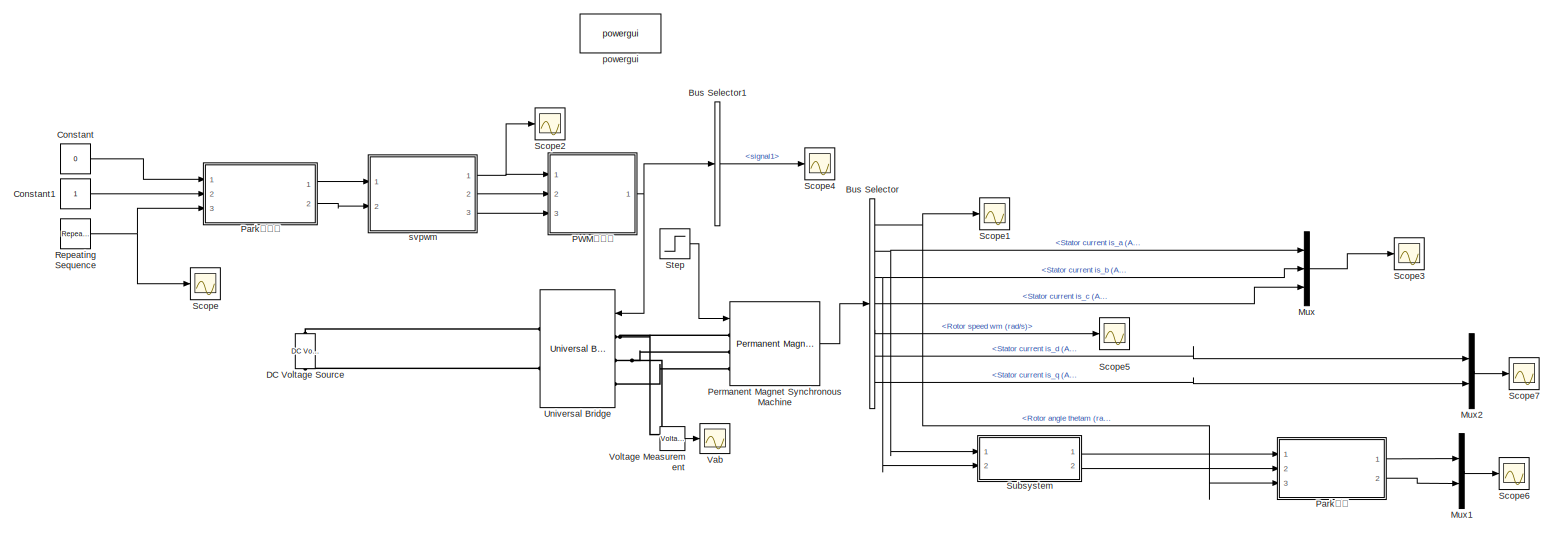
[diagram: root canvas - part 1/1, most of the canvas]
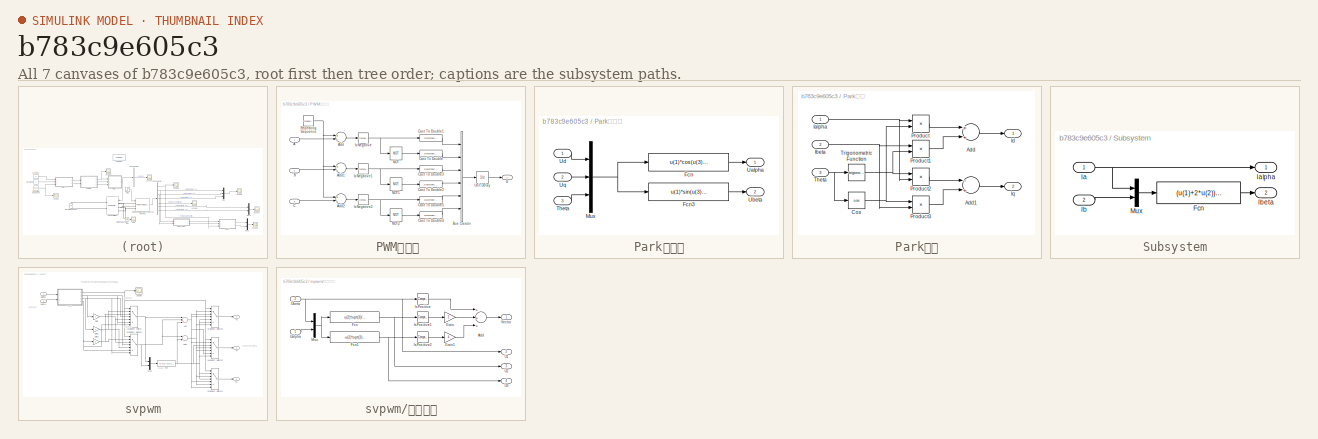
[diagram: thumbnail index - all 7 canvases of the model, root first then tree order]
MODEL slx_b783c9e605c3
KIND model
CONFIG AbsTol = auto
CONFIG EnableMultiTasking = off
CONFIG FixedStep = auto
CONFIG MaxStep = auto
CONFIG MinStep = auto
CONFIG RelTol = 1e-3
CONFIG SampleTimeConstraint = Unconstrained
CONFIG Solver = VariableStepAuto
CONFIG SolverName = VariableStepAuto
CONFIG StartTime = 0.0
CONFIG StopTime = 10.0
BLOCK [BusSelector] Bus Selector
  OutputAsBus = off
  OutputSignals = Rotor angle thetam (rad),Stator current is_a (A),Stator current is_b (A),Stator current is_c (A),Rotor speed wm (rad/s),Stator current is_d (A),Stator current is_q (A)
  Ports = [1, 7]
BLOCK [BusSelector] Bus Selector1
  OutputAsBus = off
  OutputSignals = signal1
  Ports = [1, 1]
BLOCK [Constant] Constant
  Value = 0
BLOCK [Constant] Constant1
BLOCK [Reference] DC Voltage Source  REF=powerlib/Electrical
Sources/DC Voltage Source
  Ports = [0, 0, 0, 0, 0, 1, 1]
  SourceBlock = powerlib/Electrical\nSources/DC Voltage Source
  SourceProductBaseCode = PS
  SourceProductName = Simscape Power Systems
  SourceType = DC Voltage Source
BLOCK [Mux] Mux
  DisplayOption = bar
  Inputs = 3
  Ports = [3, 1]
BLOCK [Mux] Mux1
  DisplayOption = bar
  Inputs = 2
  Ports = [2, 1]
BLOCK [Mux] Mux2
  DisplayOption = bar
  Inputs = 2
  Ports = [2, 1]
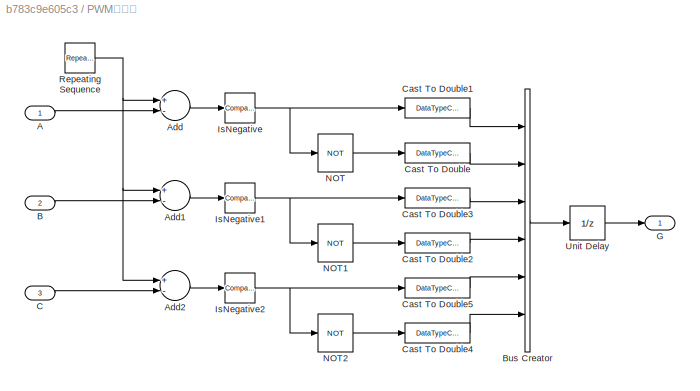
BLOCK [SubSystem] PWM待合并 
  Ports = [3, 1]
  RequestExecContextInheritance = off
BLOCK [Inport] PWM待合并 /A
  IconDisplay = Port number
BLOCK [Sum] PWM待合并 /Add
  InputSameDT = off
  Inputs = +-
  OutDataTypeStr = Inherit: Inherit via internal rule
  Ports = [2, 1]
  SaturateOnIntegerOverflow = off
BLOCK [Sum] PWM待合并 /Add1
  InputSameDT = off
  Inputs = +-
  OutDataTypeStr = Inherit: Inherit via internal rule
  Ports = [2, 1]
  SaturateOnIntegerOverflow = off
BLOCK [Sum] PWM待合并 /Add2
  InputSameDT = off
  Inputs = +-
  OutDataTypeStr = Inherit: Inherit via internal rule
  Ports = [2, 1]
  SaturateOnIntegerOverflow = off
BLOCK [Inport] PWM待合并 /B
  IconDisplay = Port number
  Port = 2
BLOCK [BusCreator] PWM待合并 /Bus Creator
  DisplayOption = bar
  InheritFromInputs = on
  Inputs = 6
  Ports = [6, 1]
BLOCK [Inport] PWM待合并 /C
  IconDisplay = Port number
  Port = 3
BLOCK [DataTypeConversion] PWM待合并 /Cast To Double
  OutDataTypeStr = double
  RndMeth = Floor
  SaturateOnIntegerOverflow = off
BLOCK [DataTypeConversion] PWM待合并 /Cast To Double1
  OutDataTypeStr = double
  RndMeth = Floor
  SaturateOnIntegerOverflow = off
BLOCK [DataTypeConversion] PWM待合并 /Cast To Double2
  OutDataTypeStr = double
  RndMeth = Floor
  SaturateOnIntegerOverflow = off
BLOCK [DataTypeConversion] PWM待合并 /Cast To Double3
  OutDataTypeStr = double
  RndMeth = Floor
  SaturateOnIntegerOverflow = off
BLOCK [DataTypeConversion] PWM待合并 /Cast To Double4
  OutDataTypeStr = double
  RndMeth = Floor
  SaturateOnIntegerOverflow = off
BLOCK [DataTypeConversion] PWM待合并 /Cast To Double5
  OutDataTypeStr = double
  RndMeth = Floor
  SaturateOnIntegerOverflow = off
BLOCK [Outport] PWM待合并 /G
  IconDisplay = Port number
BLOCK [Reference] PWM待合并 /IsNegative  REF=simulink/Logic and Bit
Operations/Compare
To Zero
  Ports = [1, 1]
  SourceBlock = simulink/Logic and Bit\nOperations/Compare\nTo Zero
  SourceProductBaseCode = SL
  SourceProductName = Simulink
  SourceType = Compare To Zero
BLOCK [Reference] PWM待合并 /IsNegative1  REF=simulink/Logic and Bit
Operations/Compare
To Zero
  Ports = [1, 1]
  SourceBlock = simulink/Logic and Bit\nOperations/Compare\nTo Zero
  SourceProductBaseCode = SL
  SourceProductName = Simulink
  SourceType = Compare To Zero
BLOCK [Reference] PWM待合并 /IsNegative2  REF=simulink/Logic and Bit
Operations/Compare
To Zero
  Ports = [1, 1]
  SourceBlock = simulink/Logic and Bit\nOperations/Compare\nTo Zero
  SourceProductBaseCode = SL
  SourceProductName = Simulink
  SourceType = Compare To Zero
BLOCK [Logic] PWM待合并 /NOT
  AllPortsSameDT = off
  IconShape = distinctive
  Operator = NOT
  OutDataTypeStr = boolean
  Ports = [1, 1]
BLOCK [Logic] PWM待合并 /NOT1
  AllPortsSameDT = off
  IconShape = distinctive
  Operator = NOT
  OutDataTypeStr = boolean
  Ports = [1, 1]
BLOCK [Logic] PWM待合并 /NOT2
  AllPortsSameDT = off
  IconShape = distinctive
  Operator = NOT
  OutDataTypeStr = boolean
  Ports = [1, 1]
BLOCK [Reference] PWM待合并 /Repeating Sequence  REF=simulink/Sources/Repeating
Sequence
  Ports = [0, 1]
  SourceBlock = simulink/Sources/Repeating\nSequence
  SourceProductBaseCode = SL
  SourceProductName = Simulink
  SourceType = Repeating table
BLOCK [UnitDelay] PWM待合并 /Unit Delay
  InputProcessing = Elements as channels (sample based)
  SampleTime = -1
BLOCK [SubSystem] Park反变换
  Ports = [3, 2]
  RequestExecContextInheritance = off
BLOCK [Fcn] Park反变换/Fcn
  Expr = u(1)*cos(u(3))-u(2)*sin(u(3))
BLOCK [Fcn] Park反变换/Fcn3
  Expr = u(1)*sin(u(3))+u(2)*cos(u(3))
BLOCK [Mux] Park反变换/Mux
  DisplayOption = bar
  Inputs = 3
  Ports = [3, 1]
BLOCK [Inport] Park反变换/Theta
  IconDisplay = Port number
  Port = 3
BLOCK [Outport] Park反变换/Ualpha
  IconDisplay = Port number
BLOCK [Outport] Park反变换/Ubeta
  IconDisplay = Port number
  Port = 2
BLOCK [Inport] Park反变换/Ud
  IconDisplay = Port number
BLOCK [Inport] Park反变换/Uq
  IconDisplay = Port number
  Port = 2
BLOCK [SubSystem] Park变换
  Ports = [3, 2]
  RequestExecContextInheritance = off
BLOCK [Sum] Park变换/Add
  InputSameDT = off
  OutDataTypeStr = Inherit: Inherit via internal rule
  Ports = [2, 1]
  SaturateOnIntegerOverflow = off
BLOCK [Sum] Park变换/Add1
  InputSameDT = off
  Inputs = -+
  OutDataTypeStr = Inherit: Inherit via internal rule
  Ports = [2, 1]
  SaturateOnIntegerOverflow = off
BLOCK [Trigonometry] Park变换/Cos
  Operator = cos
  Ports = [1, 1]
BLOCK [Inport] Park变换/Ialpha
  IconDisplay = Port number
BLOCK [Inport] Park变换/Ibeta
  IconDisplay = Port number
  Port = 2
BLOCK [Outport] Park变换/Id
  IconDisplay = Port number
BLOCK [Outport] Park变换/Iq
  IconDisplay = Port number
  Port = 2
BLOCK [Product] Park变换/Product
  InputSameDT = off
  OutDataTypeStr = Inherit: Inherit via internal rule
  Ports = [2, 1]
  RndMeth = Floor
  SaturateOnIntegerOverflow = off
BLOCK [Product] Park变换/Product1
  InputSameDT = off
  OutDataTypeStr = Inherit: Inherit via internal rule
  Ports = [2, 1]
  RndMeth = Floor
  SaturateOnIntegerOverflow = off
BLOCK [Product] Park变换/Product2
  InputSameDT = off
  OutDataTypeStr = Inherit: Inherit via internal rule
  Ports = [2, 1]
  RndMeth = Floor
  SaturateOnIntegerOverflow = off
BLOCK [Product] Park变换/Product3
  InputSameDT = off
  OutDataTypeStr = Inherit: Inherit via internal rule
  Ports = [2, 1]
  RndMeth = Floor
  SaturateOnIntegerOverflow = off
BLOCK [Inport] Park变换/Theta
  IconDisplay = Port number
  Port = 3
BLOCK [Trigonometry] Park变换/Trigonometric Function
  Ports = [1, 1]
BLOCK [Reference] Permanent Magnet Synchronous Machine  REF=powerlib/Machines/Permanent Magnet
Synchronous Machine
  Ports = [1, 1, 0, 0, 0, 3]
  SourceBlock = powerlib/Machines/Permanent Magnet\nSynchronous Machine
  SourceProductBaseCode = PS
  SourceProductName = Simscape Power Systems
  SourceType = Permanent Magnet Synchronous Machine
BLOCK [Reference] Repeating Sequence  REF=simulink/Sources/Repeating
Sequence
  Ports = [0, 1]
  SourceBlock = simulink/Sources/Repeating\nSequence
  SourceProductBaseCode = SL
  SourceProductName = Simulink
  SourceType = Repeating table
BLOCK [Scope] Scope
  Floating = off
  NumInputPorts = 1
  Ports = [1]
  ScopeSpecificationString = Simulink.scopes.TimeScopeBlockCfg('CurrentConfiguration', extmgr.ConfigurationSet(extmgr.Configuration('Core','General UI',true),extmgr.Configuration('Core','Source UI',true),extmgr.Configuration('Sources','WiredSimulink',true,'SampleTime','0.0001'),extmgr.Configuration('Visuals','Time Domain',true,'SerializedDisplays',{struct('MinYLimReal','-0.78524','MaxYLimReal','7.06717','YLabelReal','','MinYL...<+1388ch>
BLOCK [Scope] Scope1
  Floating = off
  NumInputPorts = 1
  Ports = [1]
  ScopeSpecificationString = Simulink.scopes.TimeScopeBlockCfg('CurrentConfiguration', extmgr.ConfigurationSet(extmgr.Configuration('Core','General UI',true),extmgr.Configuration('Core','Source UI',true),extmgr.Configuration('Sources','WiredSimulink',true,'DataLoggingVariableName','ScopeData1','SampleTime','0.001'),extmgr.Configuration('Visuals','Time Domain',true,'SerializedDisplays',{struct('MinYLimReal','-3.85622','MaxYLim...<+1482ch>
BLOCK [Scope] Scope2
  Floating = off
  NumInputPorts = 1
  Ports = [1]
  ScopeSpecificationString = Simulink.scopes.TimeScopeBlockCfg('CurrentConfiguration', extmgr.ConfigurationSet(extmgr.Configuration('Core','General UI',true),extmgr.Configuration('Core','Source UI',true),extmgr.Configuration('Sources','WiredSimulink',true,'SampleTime','0.0001','DataLoggingVariableName','ScopeData3'),extmgr.Configuration('Visuals','Time Domain',true,'SerializedDisplays',{struct('MinYLimReal','-0.125','MaxYLimR...<+1429ch>
BLOCK [Scope] Scope3
  Floating = off
  NumInputPorts = 1
  Ports = [1]
  ScopeSpecificationString = Simulink.scopes.TimeScopeBlockCfg('CurrentConfiguration', extmgr.ConfigurationSet(extmgr.Configuration('Core','General UI',true),extmgr.Configuration('Core','Source UI',true),extmgr.Configuration('Sources','WiredSimulink',true,'DataLoggingVariableName','ScopeData4','SampleTime','0.0001'),extmgr.Configuration('Visuals','Time Domain',true,'SerializedDisplays',{struct('MinYLimReal','-467.92605','MaxY...<+1549ch>
BLOCK [Scope] Scope4
  Floating = off
  NumInputPorts = 1
  Ports = [1]
  ScopeSpecificationString = Simulink.scopes.TimeScopeBlockCfg('CurrentConfiguration', extmgr.ConfigurationSet(extmgr.Configuration('Core','General UI',true),extmgr.Configuration('Core','Source UI',true),extmgr.Configuration('Sources','WiredSimulink',true,'SampleTime','0.00001','DataLoggingVariableName','ScopeData5'),extmgr.Configuration('Visuals','Time Domain',true,'SerializedDisplays',{struct('MinYLimReal','-0.125','MaxYLim...<+1450ch>
BLOCK [Scope] Scope5
  Floating = off
  NumInputPorts = 1
  Ports = [1]
  ScopeSpecificationString = Simulink.scopes.TimeScopeBlockCfg('CurrentConfiguration', extmgr.ConfigurationSet(extmgr.Configuration('Core','General UI',true),extmgr.Configuration('Core','Source UI',true),extmgr.Configuration('Sources','WiredSimulink',true,'DataLoggingVariableName','ScopeData6','SampleTime','0.0001'),extmgr.Configuration('Visuals','Time Domain',true,'SerializedDisplays',{struct('MinYLimReal','-252.47487','MaxY...<+1492ch>
BLOCK [Scope] Scope6
  Floating = off
  NumInputPorts = 1
  Ports = [1]
  ScopeSpecificationString = Simulink.scopes.TimeScopeBlockCfg('CurrentConfiguration', extmgr.ConfigurationSet(extmgr.Configuration('Core','General UI',true),extmgr.Configuration('Core','Source UI',true),extmgr.Configuration('Sources','WiredSimulink',true,'DataLoggingVariableName','ScopeData7','SampleTime','0.0001'),extmgr.Configuration('Visuals','Time Domain',true,'SerializedDisplays',{struct('MinYLimReal','-698.09854','MaxY...<+1487ch>
BLOCK [Scope] Scope7
  Floating = off
  NumInputPorts = 1
  Ports = [1]
  ScopeSpecificationString = Simulink.scopes.TimeScopeBlockCfg('CurrentConfiguration', extmgr.ConfigurationSet(extmgr.Configuration('Core','General UI',true),extmgr.Configuration('Core','Source UI',true),extmgr.Configuration('Sources','WiredSimulink',true,'DataLoggingVariableName','ScopeData8','SampleTime','0.0001'),extmgr.Configuration('Visuals','Time Domain',true,'SerializedDisplays',{struct('MinYLimReal','-698.09854','MaxY...<+1487ch>
BLOCK [Step] Step
  SampleTime = 0
BLOCK [SubSystem] Subsystem
  Ports = [2, 2]
  RequestExecContextInheritance = off
BLOCK [Fcn] Subsystem/Fcn
  Expr = (u(1)+2*u(2))*sqrt(3)/3
BLOCK [Inport] Subsystem/Ia
  IconDisplay = Port number
BLOCK [Outport] Subsystem/Ialpha
  IconDisplay = Port number
BLOCK [Inport] Subsystem/Ib
  IconDisplay = Port number
  Port = 2
BLOCK [Outport] Subsystem/Ibeta 
  IconDisplay = Port number
  Port = 2
BLOCK [Mux] Subsystem/Mux
  DisplayOption = bar
  Inputs = 2
  Ports = [2, 1]
BLOCK [Reference] Universal Bridge  REF=powerlib/Power
Electronics/Universal Bridge
  Ports = [1, 0, 0, 0, 0, 3, 2]
  SourceBlock = powerlib/Power\nElectronics/Universal Bridge
  SourceProductBaseCode = PS
  SourceProductName = Simscape Power Systems
  SourceType = Universal Bridge
BLOCK [Scope] Vab
  Floating = off
  NumInputPorts = 1
  Ports = [1]
  ScopeSpecificationString = Simulink.scopes.TimeScopeBlockCfg('CurrentConfiguration', extmgr.ConfigurationSet(extmgr.Configuration('Core','General UI',true),extmgr.Configuration('Core','Source UI',true),extmgr.Configuration('Sources','WiredSimulink',true,'DataLoggingVariableName','ScopeData2','DataLoggingSaveFormat','Structure','DataLoggingDecimation','1','DataLoggingDecimateData',true,'SampleTime','0.0001'),extmgr.Configura...<+1786ch>
BLOCK [Reference] Voltage Measurement  REF=powerlib/Measurements/Voltage Measurement
  Ports = [0, 1, 0, 0, 0, 2]
  SourceBlock = powerlib/Measurements/Voltage Measurement
  SourceProductBaseCode = PS
  SourceProductName = Simscape Electrical
  SourceType = Voltage Measurement
BLOCK [Reference] powergui  REF=powerlib/powergui
  Ports = []
  Priority = 1
  SourceBlock = powerlib/powergui
  SourceProductBaseCode = PS
  SourceProductName = Simscape Power Systems
  SourceType = PSB option menu block
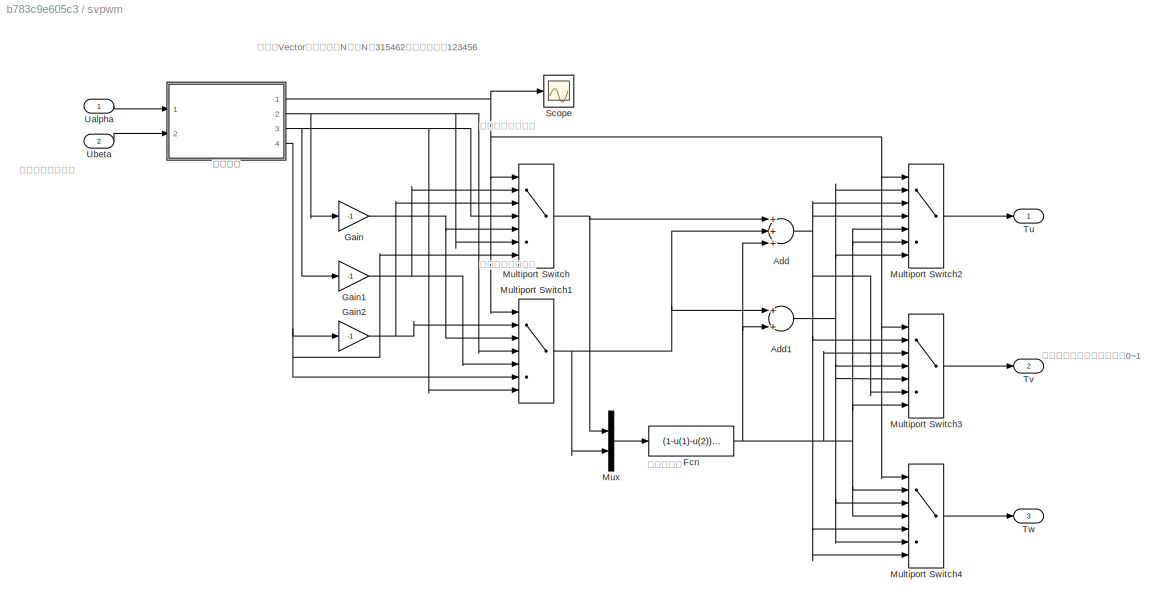
BLOCK [SubSystem] svpwm
  Ports = [2, 3]
  RequestExecContextInheritance = off
BLOCK [Sum] svpwm/Add
  InputSameDT = off
  Inputs = +++
  OutDataTypeStr = Inherit: Inherit via internal rule
  Ports = [3, 1]
  SaturateOnIntegerOverflow = off
BLOCK [Sum] svpwm/Add1
  InputSameDT = off
  OutDataTypeStr = Inherit: Inherit via internal rule
  Ports = [2, 1]
  SaturateOnIntegerOverflow = off
BLOCK [Fcn] svpwm/Fcn
  Expr = (1-u(1)-u(2))*0.5
BLOCK [Gain] svpwm/Gain
  Gain = -1
  OutDataTypeStr = Inherit: Inherit via internal rule
  ParamDataTypeStr = Inherit: Inherit via internal rule
  SaturateOnIntegerOverflow = off
BLOCK [Gain] svpwm/Gain1
  Gain = -1
  OutDataTypeStr = Inherit: Inherit via internal rule
  ParamDataTypeStr = Inherit: Inherit via internal rule
  SaturateOnIntegerOverflow = off
BLOCK [Gain] svpwm/Gain2
  Gain = -1
  OutDataTypeStr = Inherit: Inherit via internal rule
  ParamDataTypeStr = Inherit: Inherit via internal rule
  SaturateOnIntegerOverflow = off
BLOCK [MultiPortSwitch] svpwm/Multiport Switch
  InputSameDT = off
  Inputs = 6
  Ports = [7, 1]
  SaturateOnIntegerOverflow = off
BLOCK [MultiPortSwitch] svpwm/Multiport Switch1
  InputSameDT = off
  Inputs = 6
  Ports = [7, 1]
  SaturateOnIntegerOverflow = off
BLOCK [MultiPortSwitch] svpwm/Multiport Switch2
  InputSameDT = off
  Inputs = 6
  Ports = [7, 1]
  SaturateOnIntegerOverflow = off
BLOCK [MultiPortSwitch] svpwm/Multiport Switch3
  InputSameDT = off
  Inputs = 6
  Ports = [7, 1]
  SaturateOnIntegerOverflow = off
BLOCK [MultiPortSwitch] svpwm/Multiport Switch4
  InputSameDT = off
  Inputs = 6
  Ports = [7, 1]
  SaturateOnIntegerOverflow = off
BLOCK [Mux] svpwm/Mux
  DisplayOption = bar
  Inputs = 2
  Ports = [2, 1]
BLOCK [Scope] svpwm/Scope
  Floating = off
  NumInputPorts = 1
  Ports = [1]
  ScopeSpecificationString = Simulink.scopes.TimeScopeBlockCfg('CurrentConfiguration', extmgr.ConfigurationSet(extmgr.Configuration('Core','General UI',true),extmgr.Configuration('Core','Source UI',true),extmgr.Configuration('Sources','WiredSimulink',true,'DataLoggingVariableName','ScopeData1'),extmgr.Configuration('Visuals','Time Domain',true,'SerializedDisplays',{struct('MinYLimReal','0.375','MaxYLimReal','6.36031','YLabelR...<+1372ch>
BLOCK [Outport] svpwm/Tu
  IconDisplay = Port number
BLOCK [Outport] svpwm/Tv
  IconDisplay = Port number
  Port = 2
BLOCK [Outport] svpwm/Tw
  IconDisplay = Port number
  Port = 3
BLOCK [Inport] svpwm/Ualpha
  IconDisplay = Port number
BLOCK [Inport] svpwm/Ubeta
  IconDisplay = Port number
  Port = 2
BLOCK [SubSystem] svpwm/扇区判断
  Ports = [2, 4]
  RequestExecContextInheritance = off
BLOCK [Sum] svpwm/扇区判断/Add
  InputSameDT = off
  Inputs = +++
  OutDataTypeStr = Inherit: Inherit via internal rule
  Ports = [3, 1]
  SaturateOnIntegerOverflow = off
BLOCK [Fcn] svpwm/扇区判断/Fcn
  Expr = u(2)*sqrt(3)/2-u(1)/2
BLOCK [Fcn] svpwm/扇区判断/Fcn1
  Expr = -u(2)*sqrt(3)/2-u(1)/2
BLOCK [Gain] svpwm/扇区判断/Gain
  Gain = 2
  OutDataTypeStr = Inherit: Inherit via internal rule
  ParamDataTypeStr = Inherit: Inherit via internal rule
  SaturateOnIntegerOverflow = off
BLOCK [Gain] svpwm/扇区判断/Gain1
  Gain = 4
  OutDataTypeStr = Inherit: Inherit via internal rule
  ParamDataTypeStr = Inherit: Inherit via internal rule
  SaturateOnIntegerOverflow = off
BLOCK [Reference] svpwm/扇区判断/IsPositive  REF=simulink/Logic and Bit
Operations/Compare
To Zero
  Ports = [1, 1]
  SourceBlock = simulink/Logic and Bit\nOperations/Compare\nTo Zero
  SourceProductBaseCode = SL
  SourceProductName = Simulink
  SourceType = Compare To Zero
BLOCK [Reference] svpwm/扇区判断/IsPositive1  REF=simulink/Logic and Bit
Operations/Compare
To Zero
  Ports = [1, 1]
  SourceBlock = simulink/Logic and Bit\nOperations/Compare\nTo Zero
  SourceProductBaseCode = SL
  SourceProductName = Simulink
  SourceType = Compare To Zero
BLOCK [Reference] svpwm/扇区判断/IsPositive2  REF=simulink/Logic and Bit
Operations/Compare
To Zero
  Ports = [1, 1]
  SourceBlock = simulink/Logic and Bit\nOperations/Compare\nTo Zero
  SourceProductBaseCode = SL
  SourceProductName = Simulink
  SourceType = Compare To Zero
BLOCK [Mux] svpwm/扇区判断/Mux
  DisplayOption = bar
  Inputs = 2
  Ports = [2, 1]
BLOCK [Outport] svpwm/扇区判断/U1
  IconDisplay = Port number
  Port = 2
BLOCK [Outport] svpwm/扇区判断/U2
  IconDisplay = Port number
  Port = 3
BLOCK [Outport] svpwm/扇区判断/U3
  IconDisplay = Port number
  Port = 4
BLOCK [Inport] svpwm/扇区判断/Ualpha
  IconDisplay = Port number
BLOCK [Inport] svpwm/扇区判断/Ubeta
  IconDisplay = Port number
  Port = 2
BLOCK [Outport] svpwm/扇区判断/Vector
  IconDisplay = Port number
ANNOTATION svpwm: 第一非零矢量时间
ANNOTATION svpwm: 第二非零矢量时间
ANNOTATION svpwm: 这里的Vector为扇区代号N，即N为315462分别代表扇区123456
ANNOTATION svpwm: 这里输入为标幺值
ANNOTATION svpwm: 这里输出的占空比为标幺值0~1
ANNOTATION svpwm: 零矢量时间
LINE Bus Selector1:1 -> Scope4:1
NET Bus Selector:1 -> Park变换:3, Scope1:1
NET Bus Selector:2 -> Mux:1, Subsystem:1
NET Bus Selector:3 -> Mux:2, Subsystem:2
LINE Bus Selector:4 -> Mux:3
LINE Bus Selector:5 -> Scope5:1
LINE Bus Selector:6 -> Mux2:1
LINE Bus Selector:7 -> Mux2:2
LINE Constant1:1 -> Park反变换:2
LINE Constant:1 -> Park反变换:1
LINE Mux1:1 -> Scope6:1
LINE Mux2:1 -> Scope7:1
LINE Mux:1 -> Scope3:1
LINE PWM待合并 /A:1 -> PWM待合并 /Add:2
LINE PWM待合并 /Add1:1 -> PWM待合并 /IsNegative1:1
LINE PWM待合并 /Add2:1 -> PWM待合并 /IsNegative2:1
LINE PWM待合并 /Add:1 -> PWM待合并 /IsNegative:1
LINE PWM待合并 /B:1 -> PWM待合并 /Add1:2
LINE PWM待合并 /Bus Creator:1 -> PWM待合并 /Unit Delay:1
LINE PWM待合并 /C:1 -> PWM待合并 /Add2:2
LINE PWM待合并 /Cast To Double1:1 -> PWM待合并 /Bus Creator:1
LINE PWM待合并 /Cast To Double2:1 -> PWM待合并 /Bus Creator:4
LINE PWM待合并 /Cast To Double3:1 -> PWM待合并 /Bus Creator:3
LINE PWM待合并 /Cast To Double4:1 -> PWM待合并 /Bus Creator:6
LINE PWM待合并 /Cast To Double5:1 -> PWM待合并 /Bus Creator:5
LINE PWM待合并 /Cast To Double:1 -> PWM待合并 /Bus Creator:2
NET PWM待合并 /IsNegative1:1 -> PWM待合并 /Cast To Double3:1, PWM待合并 /NOT1:1
NET PWM待合并 /IsNegative2:1 -> PWM待合并 /Cast To Double5:1, PWM待合并 /NOT2:1
NET PWM待合并 /IsNegative:1 -> PWM待合并 /Cast To Double1:1, PWM待合并 /NOT:1
LINE PWM待合并 /NOT1:1 -> PWM待合并 /Cast To Double2:1
LINE PWM待合并 /NOT2:1 -> PWM待合并 /Cast To Double4:1
LINE PWM待合并 /NOT:1 -> PWM待合并 /Cast To Double:1
NET PWM待合并 /Repeating Sequence:1 -> PWM待合并 /Add1:1, PWM待合并 /Add2:1, PWM待合并 /Add:1
LINE PWM待合并 /Unit Delay:1 -> PWM待合并 /G:1
NET PWM待合并 :1 -> Bus Selector1:1, Universal Bridge:1
LINE Park反变换/Fcn3:1 -> Park反变换/Ubeta:1
LINE Park反变换/Fcn:1 -> Park反变换/Ualpha:1
NET Park反变换/Mux:1 -> Park反变换/Fcn3:1, Park反变换/Fcn:1
LINE Park反变换/Theta:1 -> Park反变换/Mux:3
LINE Park反变换/Ud:1 -> Park反变换/Mux:1
LINE Park反变换/Uq:1 -> Park反变换/Mux:2
LINE Park反变换:1 -> svpwm:1
LINE Park反变换:2 -> svpwm:2
LINE Park变换/Add1:1 -> Park变换/Iq:1
LINE Park变换/Add:1 -> Park变换/Id:1
NET Park变换/Cos:1 -> Park变换/Product3:1, Park变换/Product:2
NET Park变换/Ialpha:1 -> Park变换/Product2:2, Park变换/Product:1
NET Park变换/Ibeta:1 -> Park变换/Product1:1, Park变换/Product3:2
LINE Park变换/Product1:1 -> Park变换/Add:2
LINE Park变换/Product2:1 -> Park变换/Add1:1
LINE Park变换/Product3:1 -> Park变换/Add1:2
LINE Park变换/Product:1 -> Park变换/Add:1
NET Park变换/Theta:1 -> Park变换/Cos:1, Park变换/Trigonometric Function:1
NET Park变换/Trigonometric Function:1 -> Park变换/Product1:2, Park变换/Product2:1
LINE Park变换:1 -> Mux1:1
LINE Park变换:2 -> Mux1:2
LINE Permanent Magnet Synchronous Machine:1 -> Bus Selector:1
NET Repeating Sequence:1 -> Park反变换:3, Scope:1
LINE Step:1 -> Permanent Magnet Synchronous Machine:1
LINE Subsystem/Fcn:1 -> Subsystem/Ibeta :1
NET Subsystem/Ia:1 -> Subsystem/Ialpha:1, Subsystem/Mux:1
LINE Subsystem/Ib:1 -> Subsystem/Mux:2
LINE Subsystem/Mux:1 -> Subsystem/Fcn:1
LINE Subsystem:1 -> Park变换:1
LINE Subsystem:2 -> Park变换:2
LINE Voltage Measurement:1 -> Vab:1
NET svpwm/Add1:1 -> svpwm/Multiport Switch2:2, svpwm/Multiport Switch2:7, svpwm/Multiport Switch3:4, svpwm/Multiport Switch3:5, svpwm/Multiport Switch4:3, svpwm/Multiport Switch4:6
NET svpwm/Add:1 -> svpwm/Multiport Switch2:3, svpwm/Multiport Switch2:4, svpwm/Multiport Switch3:2, svpwm/Multiport Switch3:6, svpwm/Multiport Switch4:5, svpwm/Multiport Switch4:7
NET svpwm/Fcn:1 -> svpwm/Add1:2, svpwm/Add:3, svpwm/Multiport Switch2:5, svpwm/Multiport Switch2:6, svpwm/Multiport Switch3:3, svpwm/Multiport Switch3:7, svpwm/Multiport Switch4:2, svpwm/Multiport Switch4:4
NET svpwm/Gain1:1 -> svpwm/Multiport Switch1:5, svpwm/Multiport Switch:2
NET svpwm/Gain2:1 -> svpwm/Multiport Switch1:2, svpwm/Multiport Switch:3
NET svpwm/Gain:1 -> svpwm/Multiport Switch1:3, svpwm/Multiport Switch:5
NET svpwm/Multiport Switch1:1 -> svpwm/Add1:1, svpwm/Add:2, svpwm/Mux:2
LINE svpwm/Multiport Switch2:1 -> svpwm/Tu:1
LINE svpwm/Multiport Switch3:1 -> svpwm/Tv:1
LINE svpwm/Multiport Switch4:1 -> svpwm/Tw:1
NET svpwm/Multiport Switch:1 -> svpwm/Add:1, svpwm/Mux:1
LINE svpwm/Mux:1 -> svpwm/Fcn:1
LINE svpwm/Ualpha:1 -> svpwm/扇区判断:1
LINE svpwm/Ubeta:1 -> svpwm/扇区判断:2
LINE svpwm/扇区判断/Add:1 -> svpwm/扇区判断/Vector:1
NET svpwm/扇区判断/Fcn1:1 -> svpwm/扇区判断/IsPositive2:1, svpwm/扇区判断/U3:1
NET svpwm/扇区判断/Fcn:1 -> svpwm/扇区判断/IsPositive1:1, svpwm/扇区判断/U2:1
LINE svpwm/扇区判断/Gain1:1 -> svpwm/扇区判断/Add:3
LINE svpwm/扇区判断/Gain:1 -> svpwm/扇区判断/Add:2
LINE svpwm/扇区判断/IsPositive1:1 -> svpwm/扇区判断/Gain:1
LINE svpwm/扇区判断/IsPositive2:1 -> svpwm/扇区判断/Gain1:1
LINE svpwm/扇区判断/IsPositive:1 -> svpwm/扇区判断/Add:1
NET svpwm/扇区判断/Mux:1 -> svpwm/扇区判断/Fcn1:1, svpwm/扇区判断/Fcn:1
LINE svpwm/扇区判断/Ualpha:1 -> svpwm/扇区判断/Mux:2
NET svpwm/扇区判断/Ubeta:1 -> svpwm/扇区判断/IsPositive:1, svpwm/扇区判断/Mux:1, svpwm/扇区判断/U1:1
NET svpwm/扇区判断:1 -> svpwm/Multiport Switch1:1, svpwm/Multiport Switch2:1, svpwm/Multiport Switch3:1, svpwm/Multiport Switch4:1, svpwm/Multiport Switch:1, svpwm/Scope:1
NET svpwm/扇区判断:2 -> svpwm/Gain:1, svpwm/Multiport Switch1:4, svpwm/Multiport Switch:6
NET svpwm/扇区判断:3 -> svpwm/Gain1:1, svpwm/Multiport Switch1:7, svpwm/Multiport Switch:4
NET svpwm/扇区判断:4 -> svpwm/Gain2:1, svpwm/Multiport Switch1:6, svpwm/Multiport Switch:7
NET svpwm:1 -> PWM待合并 :1, Scope2:1
LINE svpwm:2 -> PWM待合并 :2
LINE svpwm:3 -> PWM待合并 :3
PLINE DC Voltage Source:LConn1 -- Universal Bridge:RConn2
PLINE DC Voltage Source:RConn1 -- Universal Bridge:RConn1
PNET net1: Permanent Magnet Synchronous Machine:LConn1 -- Universal Bridge:LConn1 -- Voltage Measurement:LConn1
PNET net2: Permanent Magnet Synchronous Machine:LConn2 -- Universal Bridge:LConn2 -- Voltage Measurement:LConn2
PLINE Permanent Magnet Synchronous Machine:LConn3 -- Universal Bridge:LConn3
note: NET lines group one-source signal fan-out (src -> all destinations, sorted); 1:1 wires keep LINE; PNET lines group multi-terminal physical nets as a canonical sorted terminal list (undirected conserving connections); 2-terminal nets keep the pairwise PLINE form
